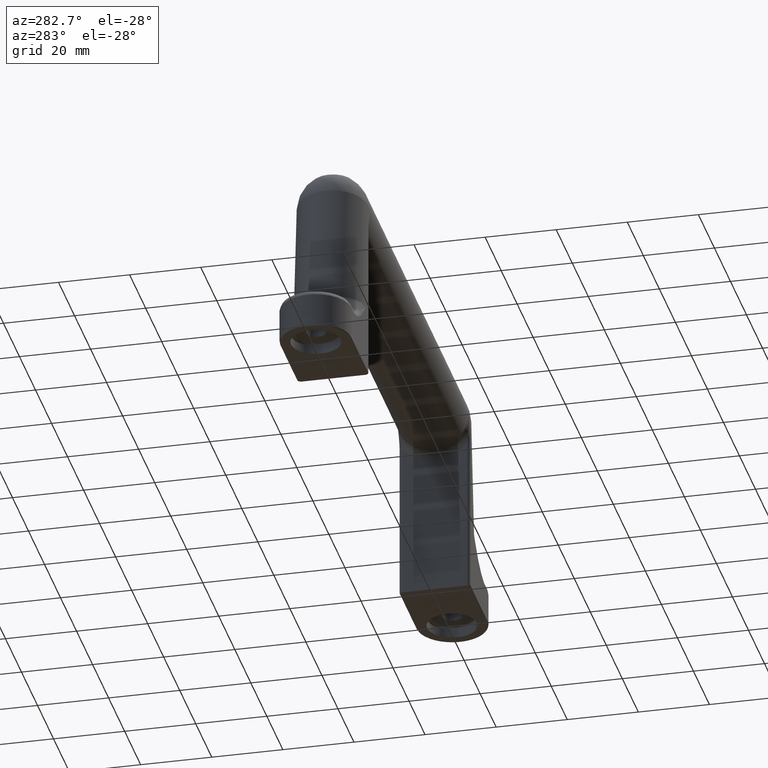
[diagram: clean part render]
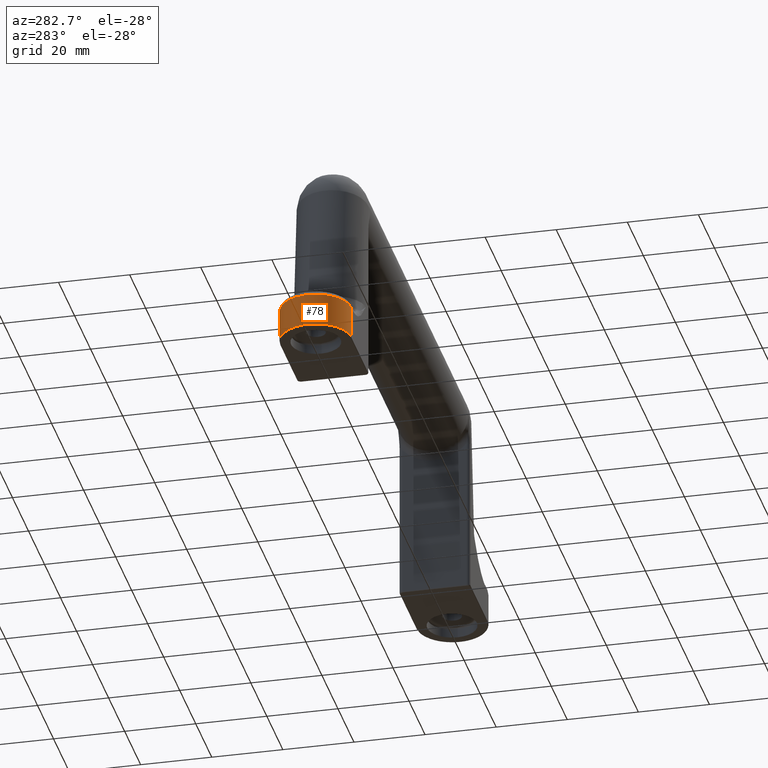
[diagram: same view with one face highlighted and labeled with its STEP entity id]
A machine part, auxiliary view. The second image highlights one B-rep face of the part: STEP entity #78.
In plain terms, the highlighted cylindrical surface (edge-blend (fillet) strip) has radius 10 mm, axis along (-0, -0, -1).
Its self-contained STEP definition (entity closure, byte-faithful):
#78=ADVANCED_FACE('',(#504),#503,.T.);
#503=CYLINDRICAL_SURFACE('',#1988,1.00000000000E+01);
#504=FACE_OUTER_BOUND('',#1989,.T.);
#1985=CARTESIAN_POINT('',(-8.50000000007E+01,6.93889390391E-15,0.00000000000E+00));
#1986=DIRECTION('',(-0.00000000000E+00,-0.00000000000E+00,-1.00000000000E+00));
#1987=DIRECTION('',(1.00000000000E+00,1.22464679915E-16,0.00000000000E+00));
#1988=AXIS2_PLACEMENT_3D('',#1985,#1986,#1987);
#1989=EDGE_LOOP('',(#2786,#2787,#2788,#2789));
#2786=ORIENTED_EDGE('',*,*,#3091,.F.);
#2787=ORIENTED_EDGE('',*,*,#3042,.T.);
#2788=ORIENTED_EDGE('',*,*,#3067,.F.);
#2789=ORIENTED_EDGE('',*,*,#3084,.T.);
#3042=EDGE_CURVE('',#3559,#3552,#3560,.T.);
#3067=EDGE_CURVE('',#3722,#3552,#3723,.T.);
#3084=EDGE_CURVE('',#3722,#3814,#3833,.T.);
#3091=EDGE_CURVE('',#3559,#3814,#3878,.T.);
#3552=VERTEX_POINT('',#4823);
#3559=VERTEX_POINT('',#4828);
#3560=CIRCLE('',#4832,1.00000000000E+01);
#3722=VERTEX_POINT('',#4959);
#3723=LINE('',#4960,#4961);
#3814=VERTEX_POINT('',#5015);
#3833=CIRCLE('',#5030,1.00000000000E+01);
#3878=LINE('',#5057,#5058);
#4823=CARTESIAN_POINT('',(-8.50000000007E+01,-1.00000000000E+01,-5.17000000000E+01));
#4828=CARTESIAN_POINT('',(-8.50000000007E+01,1.00000000000E+01,-5.17000000000E+01));
#4829=CARTESIAN_POINT('',(-8.50000000007E+01,6.93889390391E-15,-5.17000000000E+01));
#4830=DIRECTION('',(8.67361737991E-16,0.00000000000E+00,1.00000000000E+00));
#4831=DIRECTION('',(1.00000000000E+00,-0.00000000000E+00,-8.67361737991E-16));
#4832=AXIS2_PLACEMENT_3D('',#4829,#4830,#4831);
#4959=CARTESIAN_POINT('',(-8.50000000007E+01,-1.00000000000E+01,-4.25000000000E+01));
#4960=CARTESIAN_POINT('',(-8.50000000007E+01,-1.00000000000E+01,-4.25000000000E+01));
#4961=VECTOR('',#4962,9.20000000000E+00);
#4962=DIRECTION('',(0.00000000000E+00,0.00000000000E+00,-1.00000000000E+00));
#5015=CARTESIAN_POINT('',(-8.50000000007E+01,1.00000000000E+01,-4.25000000000E+01));
#5027=CARTESIAN_POINT('',(-8.50000000007E+01,6.93889390391E-15,-4.25000000000E+01));
#5028=DIRECTION('',(-0.00000000000E+00,0.00000000000E+00,-1.00000000000E+00));
#5029=DIRECTION('',(1.83690953073E-16,1.00000000000E+00,-0.00000000000E+00));
#5030=AXIS2_PLACEMENT_3D('',#5027,#5028,#5029);
#5057=CARTESIAN_POINT('',(-8.50000000007E+01,1.00000000000E+01,-5.17000000000E+01));
#5058=VECTOR('',#5059,9.20000000000E+00);
#5059=DIRECTION('',(0.00000000000E+00,0.00000000000E+00,1.00000000000E+00));